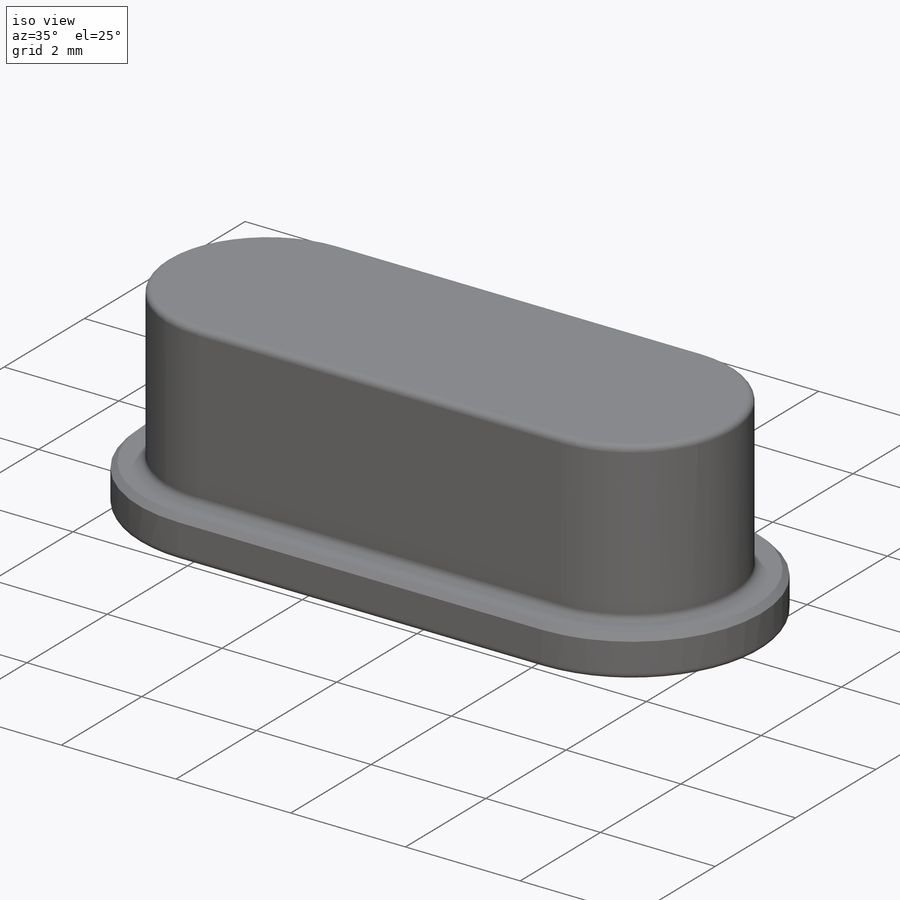
[diagram: iso view]
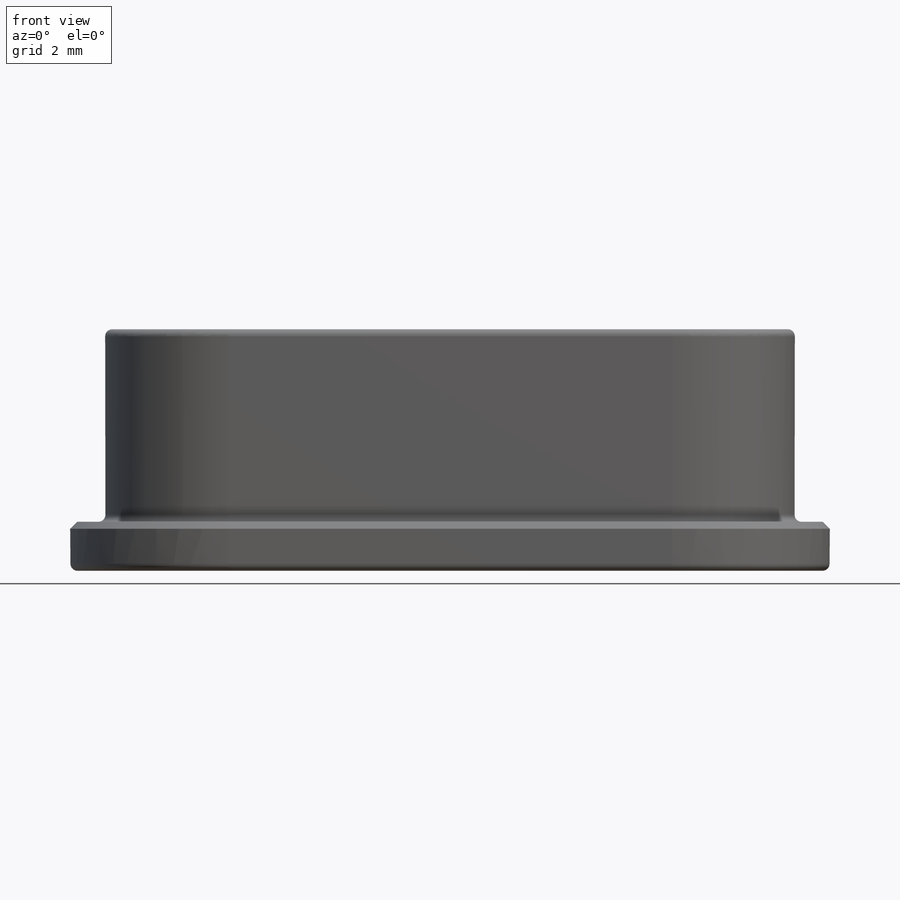
[diagram: front view]
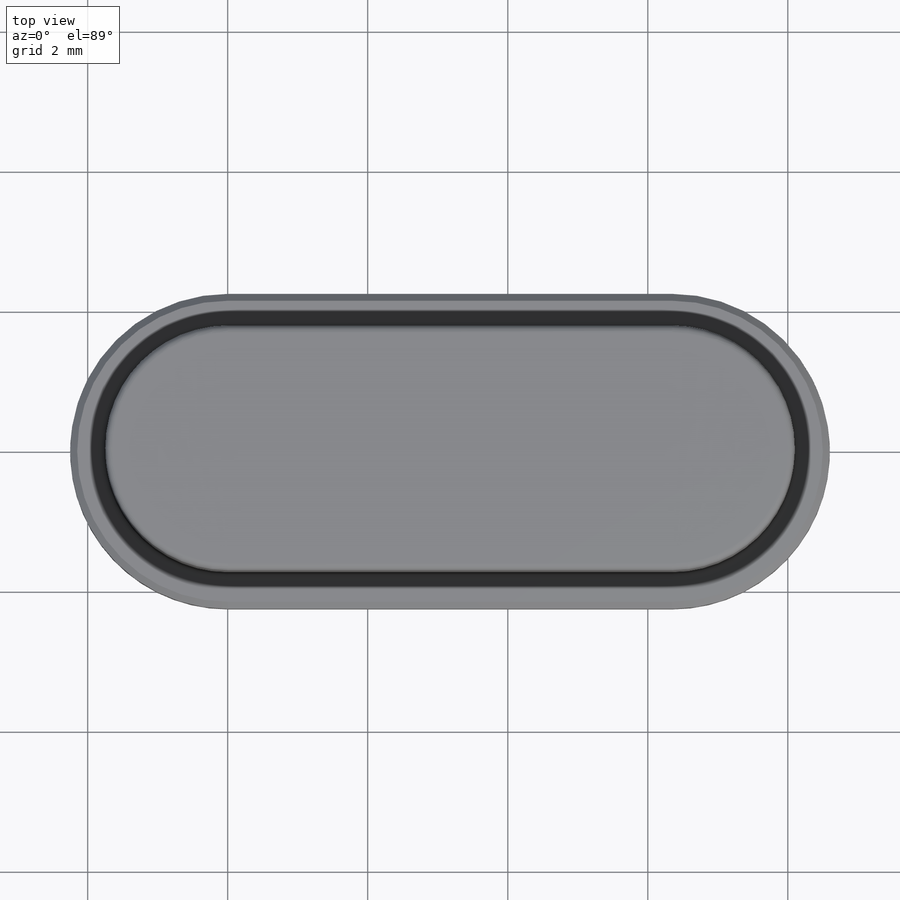
[diagram: top view]
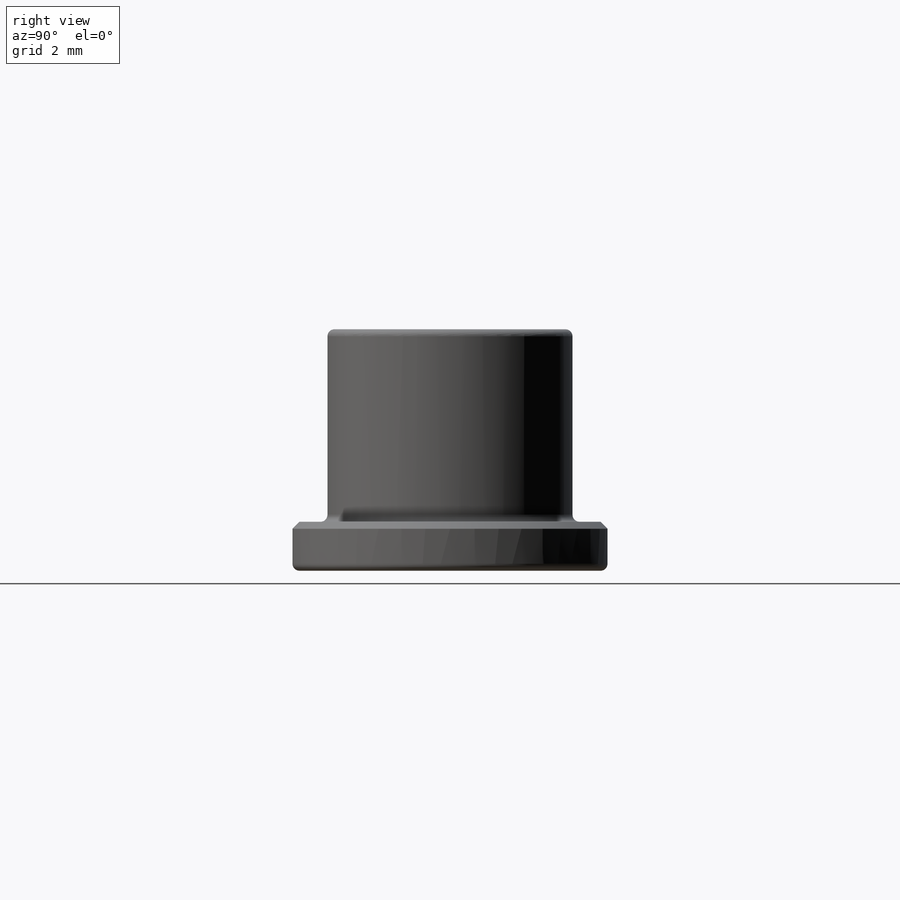
[diagram: right view]
SOLIDWORKS PART (.sldprt)
format: sldprt  version: not decoded by parser v0  size: 249,344 bytes
history: native  units: mm
features: plane x3, fillet x3, sketch x2, extrude x2, material x1, chamfer x1 (+10 scaffold rows collapsed)
feature tree (22):
  scaffold x10  (default folders/planes/origin — collapsed)
  material  "Material <not specified>"
  plane  "Plan de face"
  plane  "Plan de dessus"
  plane  "Plan de droite"
  sketch  "Esquisse1"  dims[c1.D2=2.25mm c1.D1=4.5mm c2.D2=10.85mm]
  extrude  "Boss.-Extru.1"  Depth=0.7mm
  sketch  "Esquisse2"  dims[D1=9.85mm D2=3.5mm]
  extrude  "Boss.-Extru.2"  Depth=2.75mm
  fillet  "Congé1"  Radius=0.1mm
  fillet  "Congé2"  Radius=0.1mm
  fillet  "Congé3"  Radius=0.1mm
  chamfer  "Chanfrein1"  Distance=0.1mm Angle=45deg
decode coverage: 8 of 8 modeling features carry decoded parameters
note: suppression state not decoded; provenance and decode notes live in map.json
